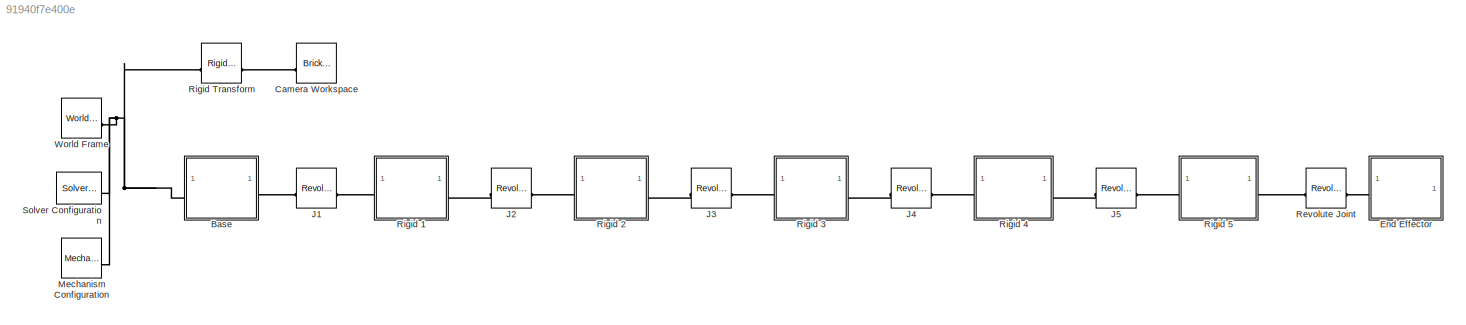
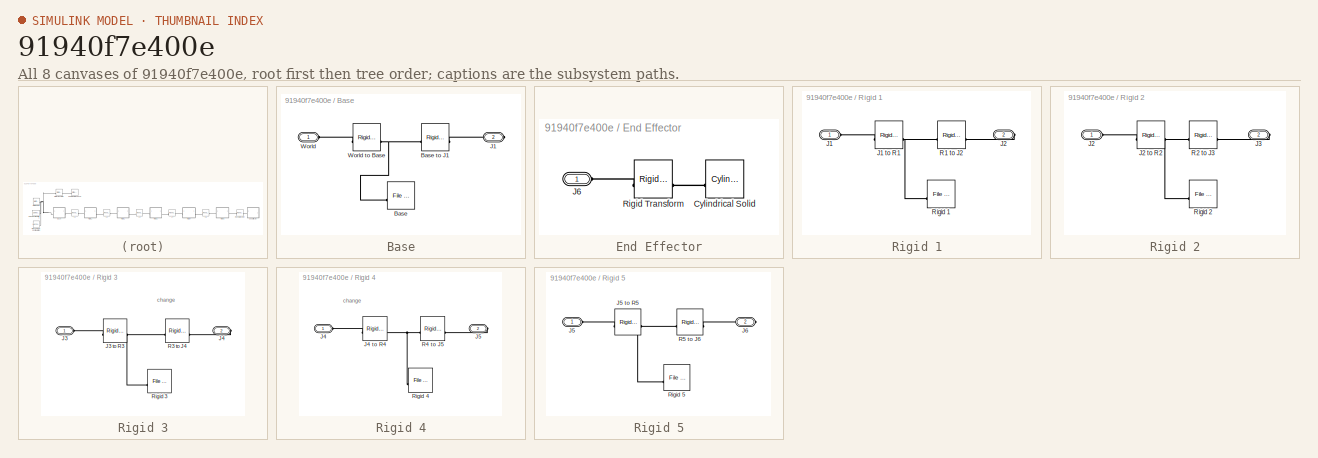
[diagram: thumbnail index - all 8 canvases of the model, root first then tree order]
MODEL slx_91940f7e400e
KIND model
CONFIG AbsTol = auto
CONFIG EnableMultiTasking = off
CONFIG FixedStep = 0.01
CONFIG MaxStep = auto
CONFIG MinStep = auto
CONFIG RelTol = 1e-3
CONFIG SampleTimeConstraint = Unconstrained
CONFIG SolverName = ode3
CONFIG StartTime = 0.0
CONFIG StopTime = 10.0
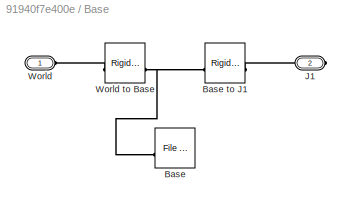
BLOCK [SubSystem] Base
BLOCK [Reference] Base/Base  REF=sm_lib/Body Elements/File Solid
  SourceBlock = sm_lib/Body Elements/File Solid
  SourceType = File Solid
BLOCK [Reference] Base/Base to J1  REF=sm_lib/Frames and
Transforms/Rigid
Transform
  SourceBlock = sm_lib/Frames and\nTransforms/Rigid\nTransform
  SourceType = Rigid\nTransform
BLOCK [PMIOPort] Base/J1
  Port = 2
  Side = Right
BLOCK [PMIOPort] Base/World
  Side = Left
BLOCK [Reference] Base/World to Base  REF=sm_lib/Frames and
Transforms/Rigid
Transform
  SourceBlock = sm_lib/Frames and\nTransforms/Rigid\nTransform
  SourceType = Rigid\nTransform
BLOCK [Reference] Camera Workspace  REF=sm_lib/Body Elements/Brick Solid
  SourceBlock = sm_lib/Body Elements/Brick Solid
  SourceType = Brick Solid
BLOCK [SubSystem] End Effector
BLOCK [Reference] End Effector/Cylindrical Solid  REF=sm_lib/Body Elements/Cylindrical Solid
  SourceBlock = sm_lib/Body Elements/Cylindrical Solid
  SourceType = Cylindrical Solid
BLOCK [PMIOPort] End Effector/J6
  Side = Left
BLOCK [Reference] End Effector/Rigid Transform  REF=sm_lib/Frames and
Transforms/Rigid
Transform
  SourceBlock = sm_lib/Frames and\nTransforms/Rigid\nTransform
  SourceType = Rigid\nTransform
BLOCK [Reference] J1  REF=sm_lib/Joints/Revolute Joint
  SourceBlock = sm_lib/Joints/Revolute Joint
  SourceType = Revolute Joint
BLOCK [Reference] J2  REF=sm_lib/Joints/Revolute Joint
  SourceBlock = sm_lib/Joints/Revolute Joint
  SourceType = Revolute Joint
BLOCK [Reference] J3  REF=sm_lib/Joints/Revolute Joint
  SourceBlock = sm_lib/Joints/Revolute Joint
  SourceType = Revolute Joint
BLOCK [Reference] J4  REF=sm_lib/Joints/Revolute Joint
  SourceBlock = sm_lib/Joints/Revolute Joint
  SourceType = Revolute Joint
BLOCK [Reference] J5  REF=sm_lib/Joints/Revolute Joint
  SourceBlock = sm_lib/Joints/Revolute Joint
  SourceType = Revolute Joint
BLOCK [Reference] Mechanism Configuration  REF=sm_lib/Utilities/Mechanism
Configuration
  SourceBlock = sm_lib/Utilities/Mechanism\nConfiguration
  SourceType = Mechanism\nConfiguration
BLOCK [Reference] Revolute Joint  REF=sm_lib/Joints/Revolute Joint
  SourceBlock = sm_lib/Joints/Revolute Joint
  SourceType = Revolute Joint
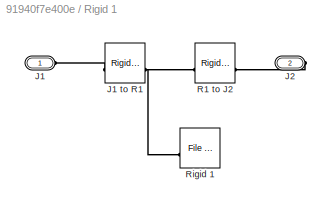
BLOCK [SubSystem] Rigid 1
BLOCK [PMIOPort] Rigid 1/J1
  Side = Left
BLOCK [Reference] Rigid 1/J1 to R1  REF=sm_lib/Frames and
Transforms/Rigid
Transform
  SourceBlock = sm_lib/Frames and\nTransforms/Rigid\nTransform
  SourceType = Rigid\nTransform
BLOCK [PMIOPort] Rigid 1/J2
  Port = 2
  Side = Right
BLOCK [Reference] Rigid 1/R1 to J2  REF=sm_lib/Frames and
Transforms/Rigid
Transform
  SourceBlock = sm_lib/Frames and\nTransforms/Rigid\nTransform
  SourceType = Rigid\nTransform
BLOCK [Reference] Rigid 1/Rigid 1  REF=sm_lib/Body Elements/File Solid
  SourceBlock = sm_lib/Body Elements/File Solid
  SourceType = File Solid
BLOCK [SubSystem] Rigid 2
BLOCK [PMIOPort] Rigid 2/J2
  Side = Left
BLOCK [Reference] Rigid 2/J2 to R2  REF=sm_lib/Frames and
Transforms/Rigid
Transform
  SourceBlock = sm_lib/Frames and\nTransforms/Rigid\nTransform
  SourceType = Rigid\nTransform
BLOCK [PMIOPort] Rigid 2/J3
  Port = 2
  Side = Right
BLOCK [Reference] Rigid 2/R2 to J3  REF=sm_lib/Frames and
Transforms/Rigid
Transform
  SourceBlock = sm_lib/Frames and\nTransforms/Rigid\nTransform
  SourceType = Rigid\nTransform
BLOCK [Reference] Rigid 2/Rigid 2  REF=sm_lib/Body Elements/File Solid
  SourceBlock = sm_lib/Body Elements/File Solid
  SourceType = File Solid
BLOCK [SubSystem] Rigid 3
BLOCK [PMIOPort] Rigid 3/J3
  Side = Left
BLOCK [Reference] Rigid 3/J3 to R3  REF=sm_lib/Frames and
Transforms/Rigid
Transform
  SourceBlock = sm_lib/Frames and\nTransforms/Rigid\nTransform
  SourceType = Rigid\nTransform
BLOCK [PMIOPort] Rigid 3/J4
  Port = 2
  Side = Right
BLOCK [Reference] Rigid 3/R3 to J4  REF=sm_lib/Frames and
Transforms/Rigid
Transform
  SourceBlock = sm_lib/Frames and\nTransforms/Rigid\nTransform
  SourceType = Rigid\nTransform
BLOCK [Reference] Rigid 3/Rigid 3  REF=sm_lib/Body Elements/File Solid
  SourceBlock = sm_lib/Body Elements/File Solid
  SourceType = File Solid
BLOCK [SubSystem] Rigid 4
BLOCK [PMIOPort] Rigid 4/J4
  Side = Left
BLOCK [Reference] Rigid 4/J4 to R4  REF=sm_lib/Frames and
Transforms/Rigid
Transform
  SourceBlock = sm_lib/Frames and\nTransforms/Rigid\nTransform
  SourceType = Rigid\nTransform
BLOCK [PMIOPort] Rigid 4/J5
  Port = 2
  Side = Right
BLOCK [Reference] Rigid 4/R4 to J5  REF=sm_lib/Frames and
Transforms/Rigid
Transform
  SourceBlock = sm_lib/Frames and\nTransforms/Rigid\nTransform
  SourceType = Rigid\nTransform
BLOCK [Reference] Rigid 4/Rigid 4  REF=sm_lib/Body Elements/File Solid
  SourceBlock = sm_lib/Body Elements/File Solid
  SourceType = File Solid
BLOCK [SubSystem] Rigid 5
BLOCK [PMIOPort] Rigid 5/J5
  Side = Left
BLOCK [Reference] Rigid 5/J5 to R5  REF=sm_lib/Frames and
Transforms/Rigid
Transform
  SourceBlock = sm_lib/Frames and\nTransforms/Rigid\nTransform
  SourceType = Rigid\nTransform
BLOCK [PMIOPort] Rigid 5/J6
  Port = 2
  Side = Right
BLOCK [Reference] Rigid 5/R5 to J6  REF=sm_lib/Frames and
Transforms/Rigid
Transform
  SourceBlock = sm_lib/Frames and\nTransforms/Rigid\nTransform
  SourceType = Rigid\nTransform
BLOCK [Reference] Rigid 5/Rigid 5  REF=sm_lib/Body Elements/File Solid
  SourceBlock = sm_lib/Body Elements/File Solid
  SourceType = File Solid
BLOCK [Reference] Rigid Transform  REF=sm_lib/Frames and
Transforms/Rigid
Transform
  SourceBlock = sm_lib/Frames and\nTransforms/Rigid\nTransform
  SourceType = Rigid\nTransform
BLOCK [Reference] Solver Configuration  REF=nesl_utility/Solver
Configuration
  SourceBlock = nesl_utility/Solver\nConfiguration
  SourceType = Solver\nConfiguration
BLOCK [Reference] World Frame  REF=sm_lib/Frames and
Transforms/World Frame
  SourceBlock = sm_lib/Frames and\nTransforms/World Frame
  SourceType = World Frame
ANNOTATION Rigid 3: change
ANNOTATION Rigid 4: change
PNET net1: Base/Base to J1:LConn1 -- Base/Base:RConn1 -- Base/World to Base:RConn1
PLINE Base/Base to J1:RConn1 -- Base/J1:RConn1
PLINE Base/World to Base:LConn1 -- Base/World:RConn1
PNET net2: Base:LConn1 -- Mechanism Configuration:RConn1 -- Rigid Transform:LConn1 -- Solver Configuration:RConn1 -- World Frame:RConn1
PLINE Base:RConn1 -- J1:LConn1
PLINE Camera Workspace:RConn1 -- Rigid Transform:RConn1
PLINE End Effector/Cylindrical Solid:RConn1 -- End Effector/Rigid Transform:RConn1
PLINE End Effector/J6:RConn1 -- End Effector/Rigid Transform:LConn1
PLINE End Effector:LConn1 -- Revolute Joint:RConn1
PLINE J1:RConn1 -- Rigid 1:LConn1
PLINE J2:LConn1 -- Rigid 1:RConn1
PLINE J2:RConn1 -- Rigid 2:LConn1
PLINE J3:LConn1 -- Rigid 2:RConn1
PLINE J3:RConn1 -- Rigid 3:LConn1
PLINE J4:LConn1 -- Rigid 3:RConn1
PLINE J4:RConn1 -- Rigid 4:LConn1
PLINE J5:LConn1 -- Rigid 4:RConn1
PLINE J5:RConn1 -- Rigid 5:LConn1
PLINE Revolute Joint:LConn1 -- Rigid 5:RConn1
PLINE Rigid 1/J1 to R1:LConn1 -- Rigid 1/J1:RConn1
PNET net3: Rigid 1/J1 to R1:RConn1 -- Rigid 1/R1 to J2:LConn1 -- Rigid 1/Rigid 1:RConn1
PLINE Rigid 1/J2:RConn1 -- Rigid 1/R1 to J2:RConn1
PLINE Rigid 2/J2 to R2:LConn1 -- Rigid 2/J2:RConn1
PNET net4: Rigid 2/J2 to R2:RConn1 -- Rigid 2/R2 to J3:LConn1 -- Rigid 2/Rigid 2:RConn1
PLINE Rigid 2/J3:RConn1 -- Rigid 2/R2 to J3:RConn1
PLINE Rigid 3/J3 to R3:LConn1 -- Rigid 3/J3:RConn1
PNET net5: Rigid 3/J3 to R3:RConn1 -- Rigid 3/R3 to J4:LConn1 -- Rigid 3/Rigid 3:RConn1
PLINE Rigid 3/J4:RConn1 -- Rigid 3/R3 to J4:RConn1
PLINE Rigid 4/J4 to R4:LConn1 -- Rigid 4/J4:RConn1
PNET net6: Rigid 4/J4 to R4:RConn1 -- Rigid 4/R4 to J5:LConn1 -- Rigid 4/Rigid 4:RConn1
PLINE Rigid 4/J5:RConn1 -- Rigid 4/R4 to J5:RConn1
PLINE Rigid 5/J5 to R5:LConn1 -- Rigid 5/J5:RConn1
PNET net7: Rigid 5/J5 to R5:RConn1 -- Rigid 5/R5 to J6:LConn1 -- Rigid 5/Rigid 5:RConn1
PLINE Rigid 5/J6:RConn1 -- Rigid 5/R5 to J6:RConn1
note: PNET lines group multi-terminal physical nets as a canonical sorted terminal list (undirected conserving connections); 2-terminal nets keep the pairwise PLINE form
